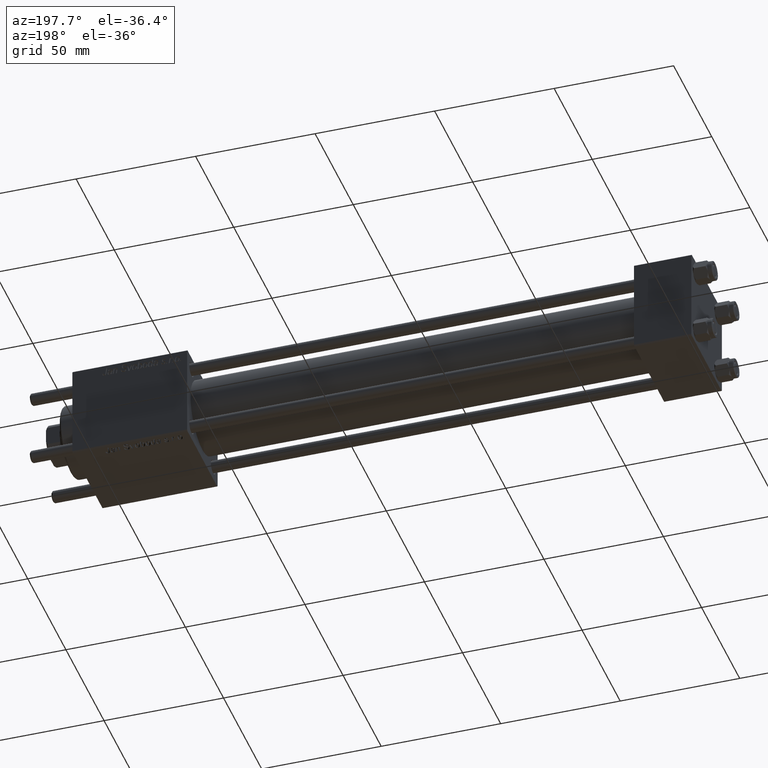
[diagram: clean part render]
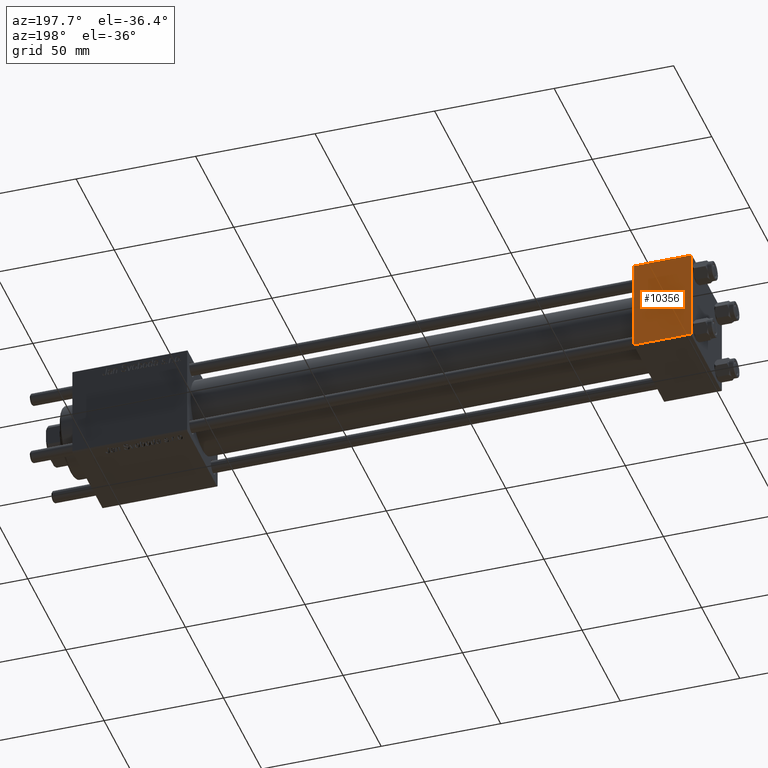
[diagram: same view with one face highlighted and labeled with its STEP entity id]
A machine part, auxiliary view. The second image highlights one B-rep face of the part: STEP entity #10356.
In plain terms, the highlighted planar face has unit normal (0, 1, 0).
Its self-contained STEP definition (entity closure, byte-faithful):
#723 = VECTOR ( 'NONE', #41443, 1000.000000000000000 ) ;
#2560 = CARTESIAN_POINT ( 'NONE',  ( 24.00000000000000000, 20.00000000000000000, 20.00000000000000000 ) ) ;
#5251 = VECTOR ( 'NONE', #52237, 1000.000000000000000 ) ;
#5551 = VERTEX_POINT ( 'NONE', #18802 ) ;
#7826 = PLANE ( 'NONE',  #51046 ) ;
#8325 = CARTESIAN_POINT ( 'NONE',  ( 0.000000000000000000, 20.00000000000000000, 19.49999999999999289 ) ) ;
#9081 = VERTEX_POINT ( 'NONE', #22232 ) ;
#9640 = CARTESIAN_POINT ( 'NONE',  ( 24.00000000000000000, 20.00000000000000000, 19.49999999999999289 ) ) ;
#10356 = ADVANCED_FACE ( 'NONE', ( #16980 ), #7826, .T. ) ;
#10551 = EDGE_CURVE ( 'NONE', #47998, #9081, #37793, .T. ) ;
#11419 = DIRECTION ( 'NONE',  ( 0.000000000000000000, 0.000000000000000000, -1.000000000000000000 ) ) ;
#11572 = DIRECTION ( 'NONE',  ( 1.000000000000000000, 0.000000000000000000, 0.000000000000000000 ) ) ;
#16200 = VECTOR ( 'NONE', #11419, 1000.000000000000000 ) ;
#16980 = FACE_OUTER_BOUND ( 'NONE', #35190, .T. ) ;
#18802 = CARTESIAN_POINT ( 'NONE',  ( 0.000000000000000000, 20.00000000000000000, -19.50000000000002132 ) ) ;
#19079 = LINE ( 'NONE', #20209, #723 ) ;
#20209 = CARTESIAN_POINT ( 'NONE',  ( 24.00000000000000000, 20.00000000000000000, -19.50000000000002132 ) ) ;
#21010 = CARTESIAN_POINT ( 'NONE',  ( 24.00000000000000000, 20.00000000000000000, 20.00000000000000000 ) ) ;
#21270 = EDGE_CURVE ( 'NONE', #35938, #47998, #38223, .T. ) ;
#22232 = CARTESIAN_POINT ( 'NONE',  ( 24.00000000000000000, 20.00000000000000000, -19.50000000000002132 ) ) ;
#22596 = ORIENTED_EDGE ( 'NONE', *, *, #25870, .T. ) ;
#23353 = EDGE_CURVE ( 'NONE', #35938, #5551, #43347, .T. ) ;
#25312 = DIRECTION ( 'NONE',  ( 0.000000000000000000, -0.000000000000000000, 1.000000000000000000 ) ) ;
#25870 = EDGE_CURVE ( 'NONE', #9081, #5551, #19079, .T. ) ;
#29343 = DIRECTION ( 'NONE',  ( -0.000000000000000000, 1.000000000000000000, 0.000000000000000000 ) ) ;
#30161 = CARTESIAN_POINT ( 'NONE',  ( 0.000000000000000000, 20.00000000000000000, 20.00000000000000000 ) ) ;
#30784 = VECTOR ( 'NONE', #11572, 1000.000000000000000 ) ;
#31132 = ORIENTED_EDGE ( 'NONE', *, *, #21270, .T. ) ;
#35190 = EDGE_LOOP ( 'NONE', ( #55656, #22596, #42566, #31132 ) ) ;
#35938 = VERTEX_POINT ( 'NONE', #8325 ) ;
#37793 = LINE ( 'NONE', #2560, #16200 ) ;
#38223 = LINE ( 'NONE', #46265, #30784 ) ;
#41443 = DIRECTION ( 'NONE',  ( -1.000000000000000000, 0.000000000000000000, 0.000000000000000000 ) ) ;
#42566 = ORIENTED_EDGE ( 'NONE', *, *, #23353, .F. ) ;
#43347 = LINE ( 'NONE', #30161, #5251 ) ;
#46265 = CARTESIAN_POINT ( 'NONE',  ( 24.00000000000000000, 20.00000000000000000, 19.49999999999999289 ) ) ;
#47998 = VERTEX_POINT ( 'NONE', #9640 ) ;
#51046 = AXIS2_PLACEMENT_3D ( 'NONE', #21010, #29343, #25312 ) ;
#52237 = DIRECTION ( 'NONE',  ( 0.000000000000000000, 0.000000000000000000, -1.000000000000000000 ) ) ;
#55656 = ORIENTED_EDGE ( 'NONE', *, *, #10551, .T. ) ;